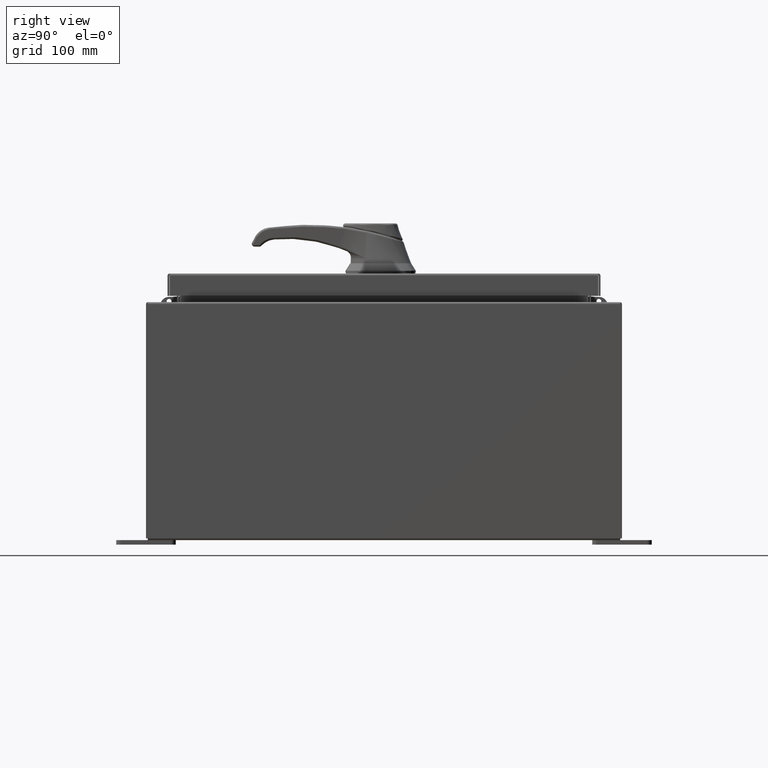
[diagram: clean part render]
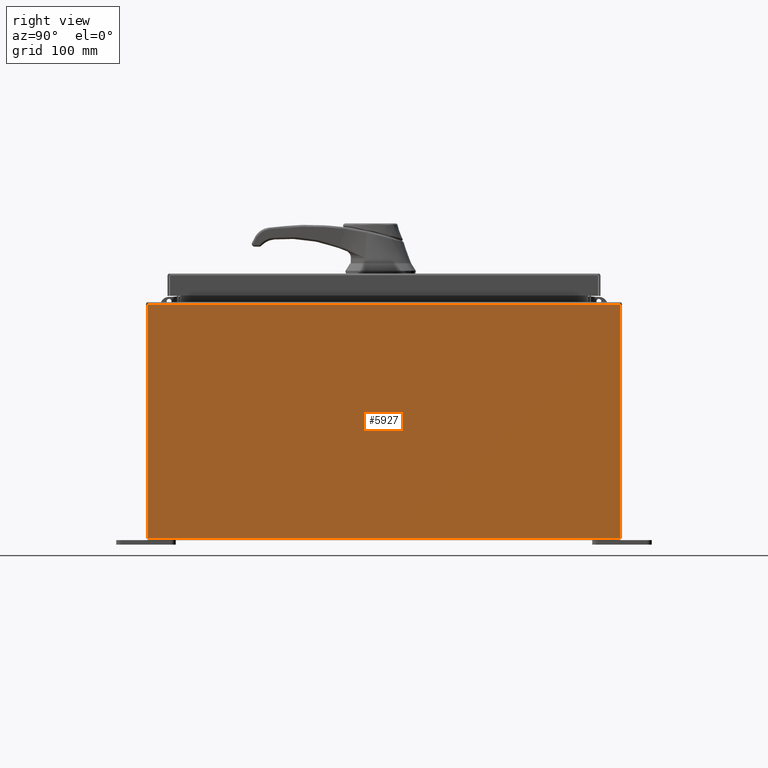
[diagram: same view with one face highlighted and labeled with its STEP entity id]
A machine part, right view. The second image highlights one B-rep face of the part: STEP entity #5927.
In plain terms, the highlighted planar face has unit normal (-1, 0, 0).
Its self-contained STEP definition (entity closure, byte-faithful):
#1149 = VECTOR ( 'NONE', #11978, 39.37007874015748100 ) ;
#2841 = VECTOR ( 'NONE', #45530, 39.37007874015748100 ) ;
#5589 = CARTESIAN_POINT ( 'NONE',  ( 8.000000000000001800, 9.925299999999992900, 0.01299999999999984700 ) ) ;
#5927 = ADVANCED_FACE ( 'NONE', ( #104217 ), #56967, .F. ) ;
#11978 = DIRECTION ( 'NONE',  ( -3.523082860860888200E-015, 0.0000000000000000000, -1.000000000000000000 ) ) ;
#14062 = VERTEX_POINT ( 'NONE', #5589 ) ;
#17444 = VECTOR ( 'NONE', #46600, 39.37007874015748100 ) ;
#18636 = ORIENTED_EDGE ( 'NONE', *, *, #68111, .T. ) ;
#18783 = CARTESIAN_POINT ( 'NONE',  ( 8.000000000000037300, -9.925300000000005300, 9.837599999999998300 ) ) ;
#20118 = CARTESIAN_POINT ( 'NONE',  ( 8.000000000000035500, 9.925299999999991100, 9.837599999999998300 ) ) ;
#25613 = EDGE_CURVE ( 'NONE', #14062, #79006, #39844, .T. ) ;
#30657 = LINE ( 'NONE', #20118, #2841 ) ;
#39560 = ORIENTED_EDGE ( 'NONE', *, *, #25613, .F. ) ;
#39668 = DIRECTION ( 'NONE',  ( -1.000000000000000000, 0.0000000000000000000, 3.523082860860887800E-015 ) ) ;
#39844 = LINE ( 'NONE', #97073, #17444 ) ;
#40409 = DIRECTION ( 'NONE',  ( 3.523082860860887800E-015, 0.0000000000000000000, 1.000000000000000000 ) ) ;
#42246 = EDGE_LOOP ( 'NONE', ( #103555, #18636, #39560, #70240 ) ) ;
#45530 = DIRECTION ( 'NONE',  ( -0.0000000000000000000, -1.000000000000000000, -0.0000000000000000000 ) ) ;
#45776 = DIRECTION ( 'NONE',  ( 3.523082860860888200E-015, -2.201926788038055100E-016, 1.000000000000000000 ) ) ;
#46600 = DIRECTION ( 'NONE',  ( -0.0000000000000000000, -1.000000000000000000, -0.0000000000000000000 ) ) ;
#48718 = LINE ( 'NONE', #54322, #1149 ) ;
#54322 = CARTESIAN_POINT ( 'NONE',  ( 8.000000000000001800, -9.925300000000001800, -2.844547654289869600E-014 ) ) ;
#56821 = VERTEX_POINT ( 'NONE', #18783 ) ;
#56967 = PLANE ( 'NONE',  #67631 ) ;
#64286 = LINE ( 'NONE', #104752, #86717 ) ;
#67631 = AXIS2_PLACEMENT_3D ( 'NONE', #98994, #39668, #40409 ) ;
#68111 = EDGE_CURVE ( 'NONE', #56821, #79006, #48718, .T. ) ;
#70240 = ORIENTED_EDGE ( 'NONE', *, *, #104770, .T. ) ;
#79006 = VERTEX_POINT ( 'NONE', #84702 ) ;
#81663 = VERTEX_POINT ( 'NONE', #108777 ) ;
#84702 = CARTESIAN_POINT ( 'NONE',  ( 8.000000000000001800, -9.925300000000001800, 0.01299999999999984300 ) ) ;
#86717 = VECTOR ( 'NONE', #45776, 39.37007874015748100 ) ;
#94955 = EDGE_CURVE ( 'NONE', #81663, #56821, #30657, .T. ) ;
#97073 = CARTESIAN_POINT ( 'NONE',  ( 8.000000000000001800, -9.925300000000001800, 0.01299999999999984700 ) ) ;
#98994 = CARTESIAN_POINT ( 'NONE',  ( 8.000000000000001800, 0.0000000000000000000, -2.844547654289869600E-014 ) ) ;
#103555 = ORIENTED_EDGE ( 'NONE', *, *, #94955, .T. ) ;
#104217 = FACE_OUTER_BOUND ( 'NONE', #42246, .T. ) ;
#104752 = CARTESIAN_POINT ( 'NONE',  ( 8.000000000000001800, 9.925299999999998200, -2.625999814796728400E-014 ) ) ;
#104770 = EDGE_CURVE ( 'NONE', #14062, #81663, #64286, .T. ) ;
#108777 = CARTESIAN_POINT ( 'NONE',  ( 8.000000000000035500, 9.925299999999987600, 9.837599999999998300 ) ) ;